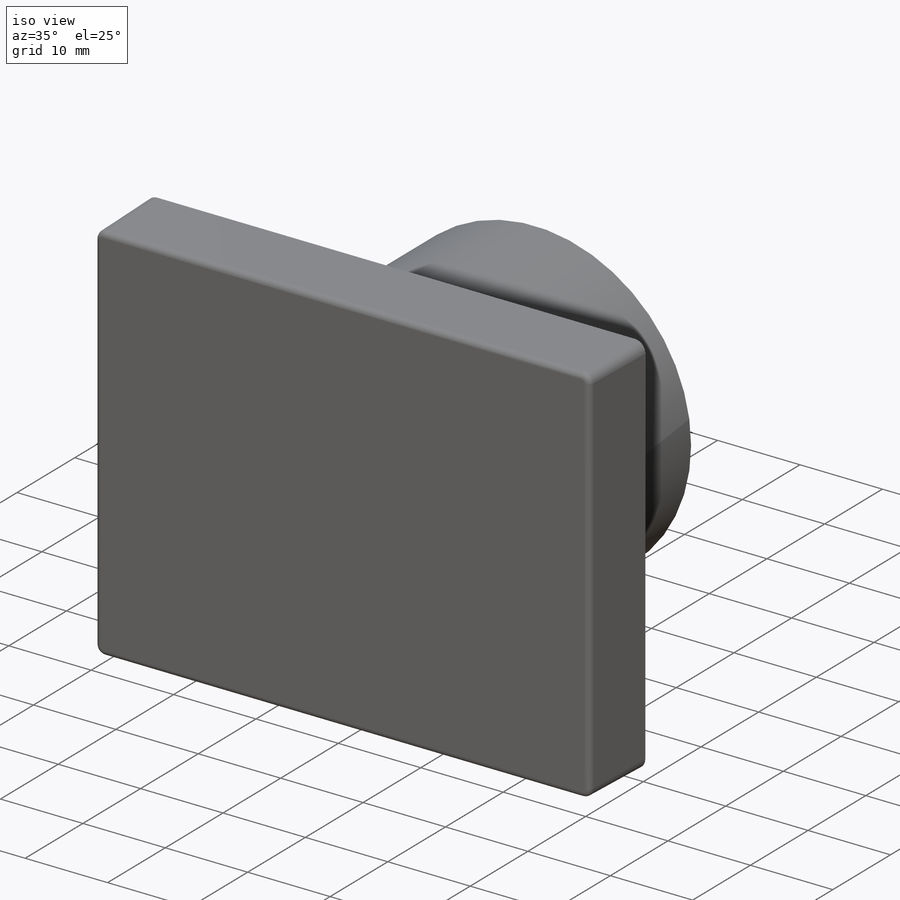
[diagram: iso view]
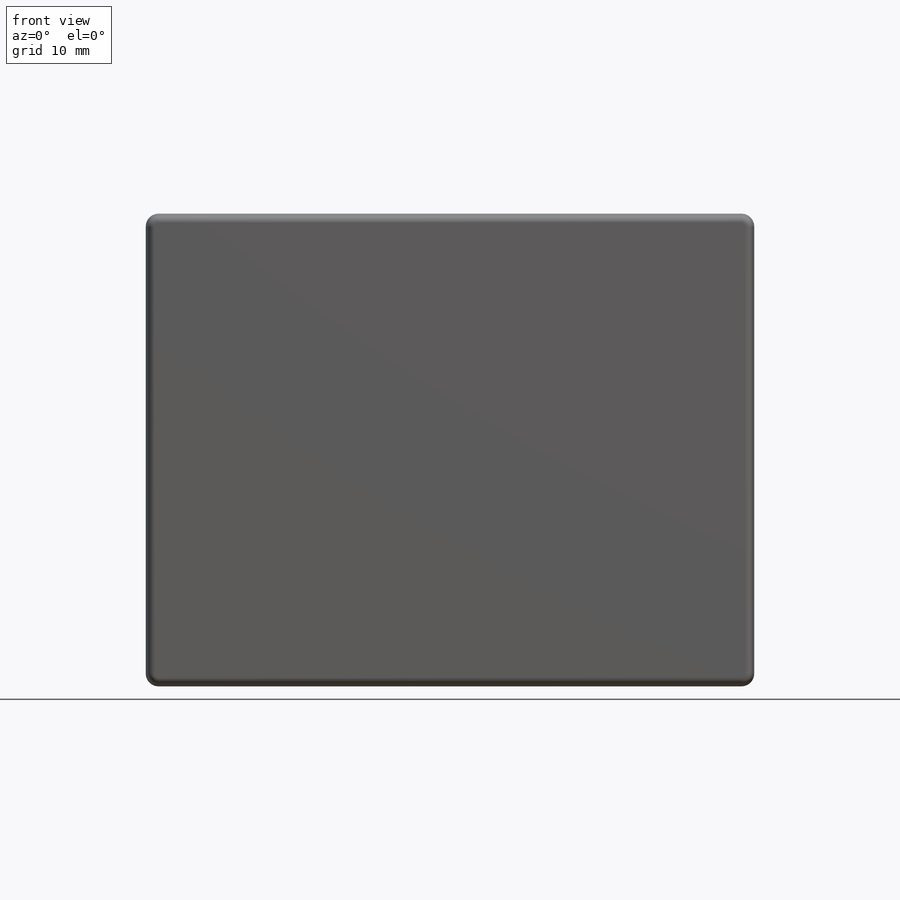
[diagram: front view]
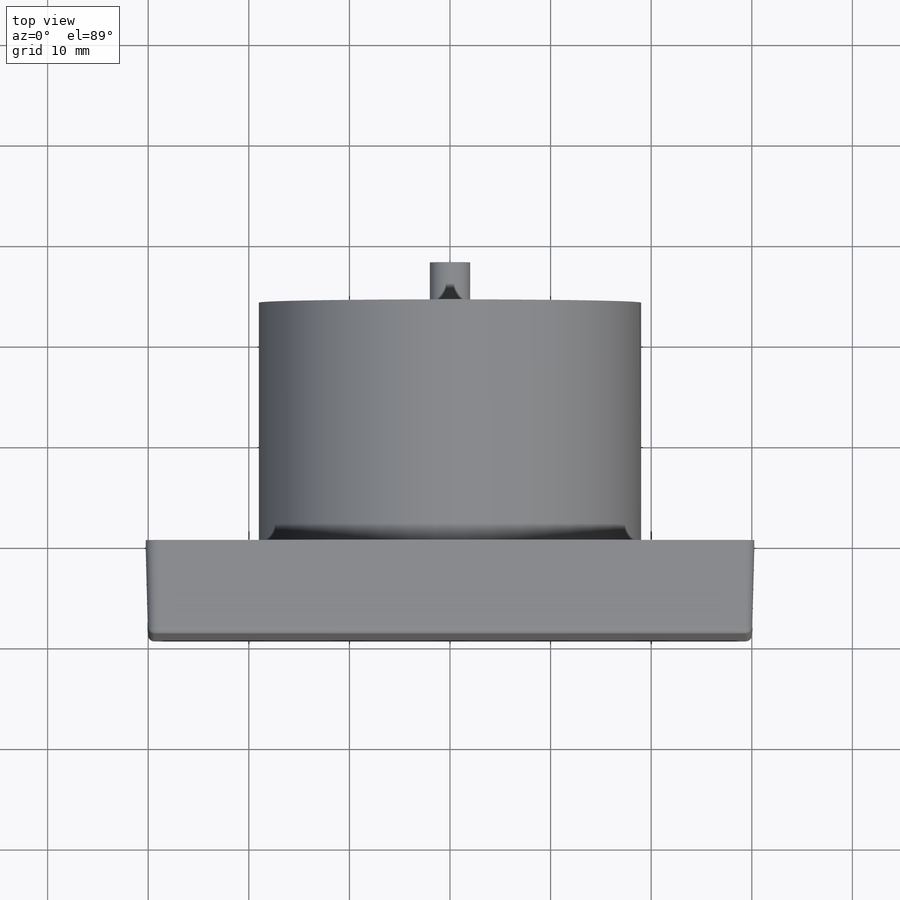
[diagram: top view]
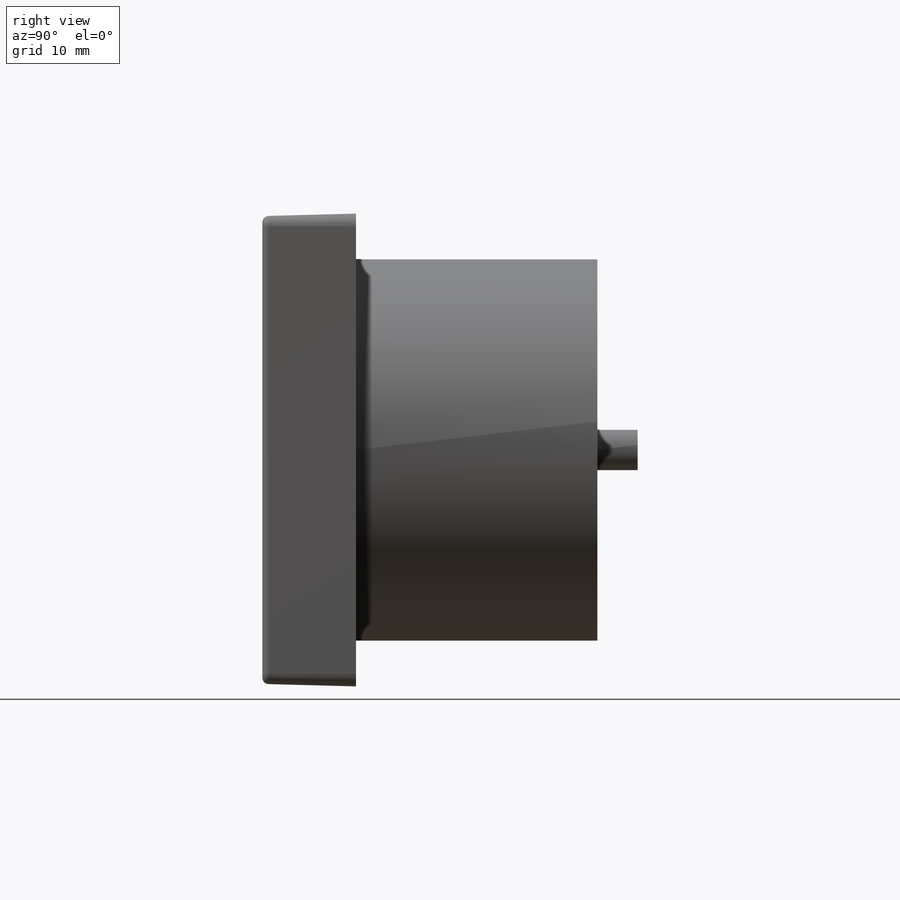
[diagram: right view]
SOLIDWORKS PART (.sldprt)
format: sldprt  version: not decoded by parser v0  size: 265,728 bytes
history: native  units: mm
features: sketch x3, extrude x3, fillet x2, material x1 (+12 scaffold rows collapsed)
feature tree (21):
  scaffold x12  (default folders/planes/origin — collapsed)
  material  "Material <not specified>"
  sketch  "Sketch1"  dims[D1=60.5mm D2=47.0mm]
  extrude  "Boss-Extrude1"  Depth=9.3mm
  fillet  "Fillet1"  Radius=1.27mm
  fillet  "Fillet2"  Radius=0.635mm
  sketch  "Sketch3"  dims[D1=38.0mm]
  extrude  "Boss-Extrude2"  Depth=24mm
  sketch  "Sketch4"  dims[D1=4.0mm]
  extrude  "Boss-Extrude3"  Depth=4mm
decode coverage: 8 of 8 modeling features carry decoded parameters
note: suppression state not decoded; provenance and decode notes live in map.json
